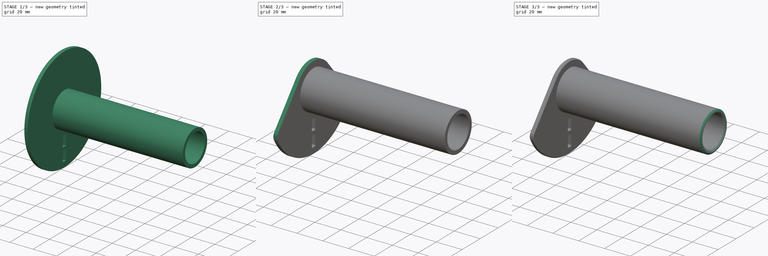
[diagram: build sequence overview — one tinted view per stage of 3, left to right]
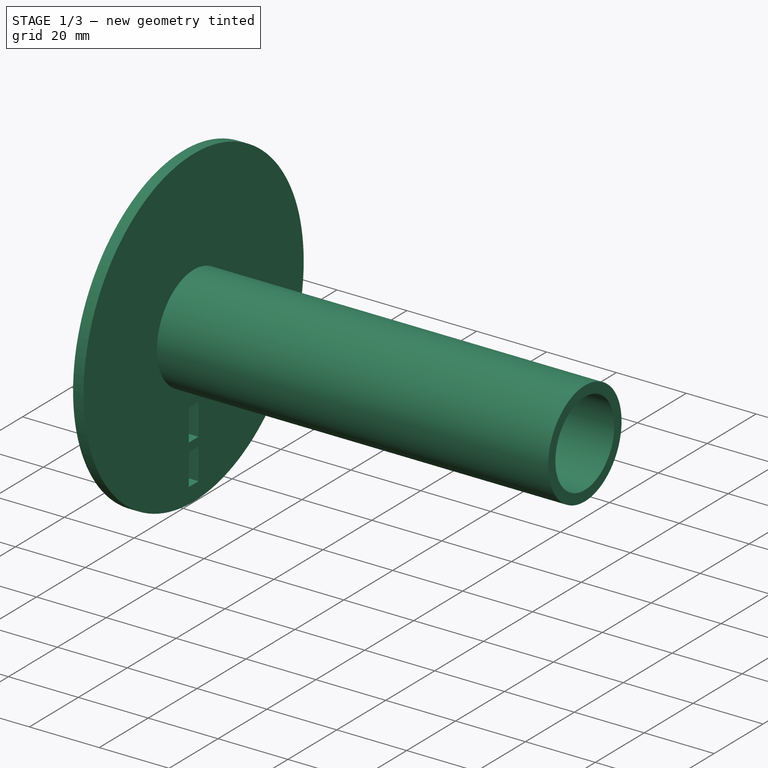
[diagram: stage 1 of 3 — iso view after this stage's code; geometry added in this stage tinted green]
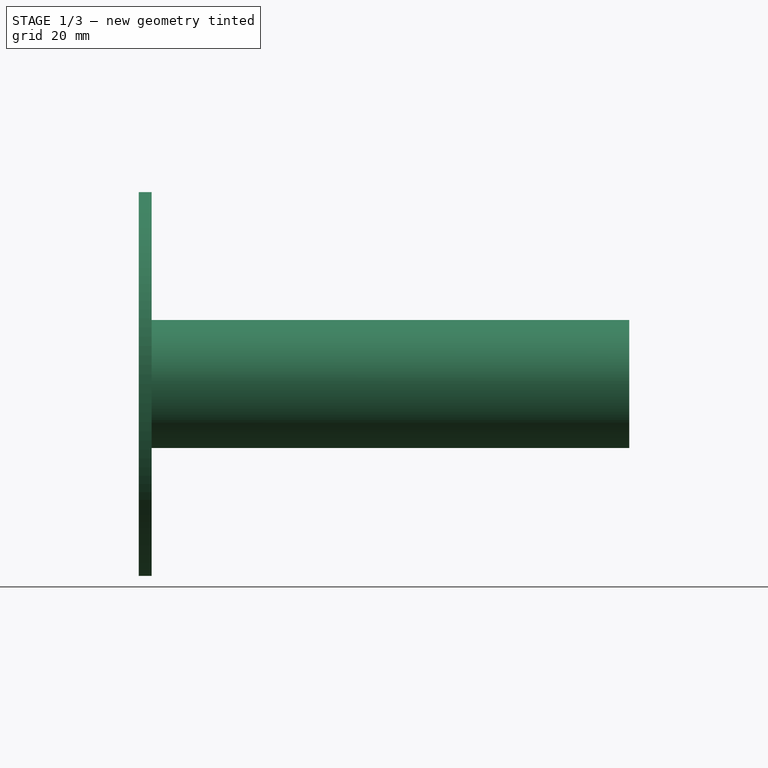
[diagram: stage 1 of 3 — front view after this stage's code; geometry added in this stage tinted green]
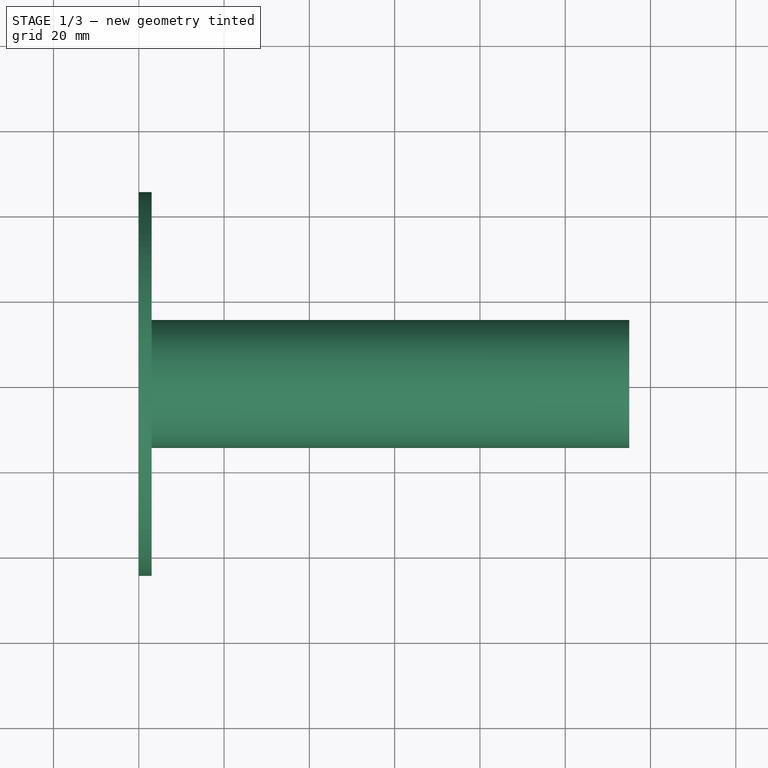
[diagram: stage 1 of 3 — top view after this stage's code; geometry added in this stage tinted green]
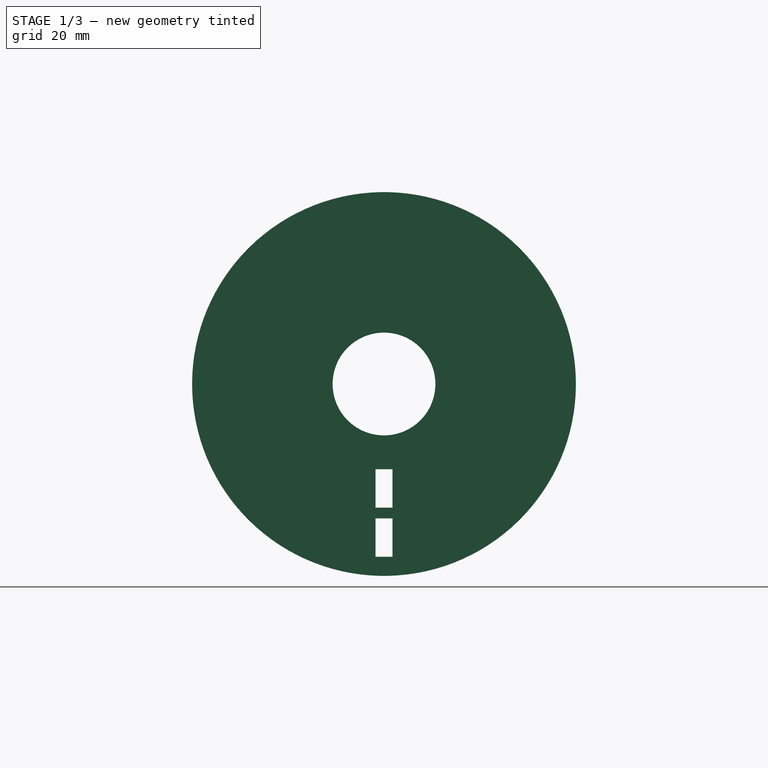
[diagram: stage 1 of 3 — right view after this stage's code; geometry added in this stage tinted green]
FCSTD DOCUMENT  (FreeCAD 0.18R16146 (Git))
Label: vp5005
License: All rights reserved
LicenseURL: http://en.wikipedia.org/wiki/All_rights_reserved
objects: Sketcher::SketchObject×3, PartDesign::Pocket×2, PartDesign::Fillet×2, PartDesign::Chamfer×2, PartDesign::Revolution×1, PartDesign::Body×1
note: 14 computed .brp shape members not serialized (recipe doc carries the construction recipe); baked Part::Feature solids carry a one-line shape summary decoded from their .brp

FEATURE [Sketcher::SketchObject] Sketch
  MapMode = 5
  Support = -> [XY_Plane]
  sketch-geometry (6):
    g0: LineSegment StartX=0 StartY=45 StartZ=0 EndX=3 EndY=45 EndZ=0
    g1: LineSegment StartX=0 StartY=45 StartZ=0 EndX=0 EndY=12.05 EndZ=0
    g2: LineSegment StartX=0 StartY=12.05 StartZ=0 EndX=115 EndY=12.05 EndZ=0
    g3: LineSegment StartX=115 StartY=12.05 StartZ=0 EndX=115 EndY=15 EndZ=0
    g4: LineSegment StartX=115 StartY=15 StartZ=0 EndX=3 EndY=15 EndZ=0
    g5: LineSegment StartX=3 StartY=15 StartZ=0 EndX=3 EndY=45 EndZ=0
  constraints (18):
    c: Horizontal(g0)
    c: Vertical(g1)
    c: Horizontal(g2)
    c: Vertical(g3)
    c: Coincident(g4,g3)
    c: Horizontal(g4)
    c: Coincident(g1,g0)
    c: DistanceY(g-1,g3) = 15
    c: Coincident(g2,g3)
    c: DistanceY(g-1,g2) = 12.05
    c: PointOnObject(g1,g-2)
    c: DistanceX(g0,g0) = 3
    c: DistanceY(g-1,g0) = 45
    c: Vertical(g5)
    c: Coincident(g5,g0)
    c: DistanceX(g1,g2) = 115
    c: Coincident(g2,g1)
    c: Coincident(g4,g5)
FEATURE [PartDesign::Revolution] Revolution
  Angle = 360
  Axis = (1,0,0)
  Base = (0,0,0)
  Profile = -> Sketch
  ReferenceAxis = -> X_Axis
  Reversed = true
FEATURE [Sketcher::SketchObject] Sketch001
  MapMode = 5
  Placement = pos=(2,0,0) rot=(0.57735,0.57735,0.57735;2.0944rad)
  sketch-geometry (8):
    g0: LineSegment StartX=-2 StartY=-31.5 StartZ=0 EndX=2 EndY=-31.5 EndZ=0
    g1: LineSegment StartX=2 StartY=-31.5 StartZ=0 EndX=2 EndY=-40.5 EndZ=0
    g2: LineSegment StartX=2 StartY=-40.5 StartZ=0 EndX=-2 EndY=-40.5 EndZ=0
    g3: LineSegment StartX=-2 StartY=-40.5 StartZ=0 EndX=-2 EndY=-31.5 EndZ=0
    g4: LineSegment StartX=-2 StartY=-20 StartZ=0 EndX=2 EndY=-20 EndZ=0
    g5: LineSegment StartX=2 StartY=-20 StartZ=0 EndX=2 EndY=-29 EndZ=0
    g6: LineSegment StartX=2 StartY=-29 StartZ=0 EndX=-2 EndY=-29 EndZ=0
    g7: LineSegment StartX=-2 StartY=-29 StartZ=0 EndX=-2 EndY=-20 EndZ=0
  constraints (24):
    c: Coincident(g0,g1)
    c: Coincident(g1,g2)
    c: Coincident(g2,g3)
    c: Coincident(g3,g0)
    c: Horizontal(g0)
    c: Horizontal(g2)
    c: Vertical(g1)
    c: Vertical(g3)
    c: Coincident(g4,g5)
    c: Coincident(g5,g6)
    c: Coincident(g6,g7)
    c: Coincident(g7,g4)
    c: Horizontal(g4)
    c: Horizontal(g6)
    c: Vertical(g5)
    c: Vertical(g7)
    c: DistanceX(g-1,g4) = 2
    c: DistanceX(g4,g-1) = 2
    c: DistanceY(g4,g-1) = 20
    c: DistanceY(g5,g4) = 9
    c: DistanceY(g0,g5) = 2.5
    c: Equal(g1,g5)
    c: PointOnObject(g0,g7)
    c: PointOnObject(g0,g5)
FEATURE [PartDesign::Pocket] Pocket
  BaseFeature = -> Revolution
  Length = 6
  Length2 = 100
  Midplane = true
  Profile = -> Sketch001
  Type = 0
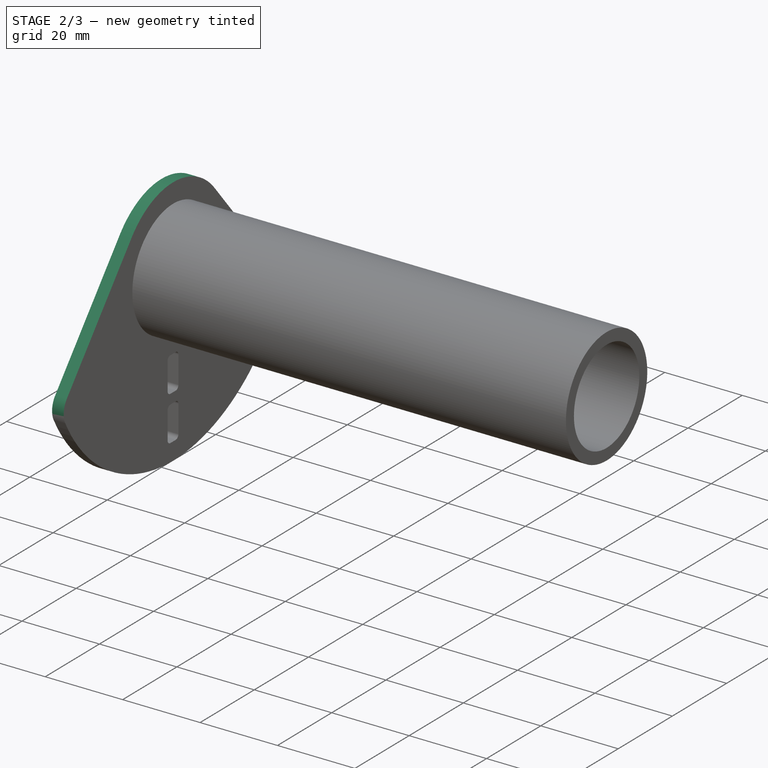
[diagram: stage 2 of 3 — iso view after this stage's code; geometry added in this stage tinted green]
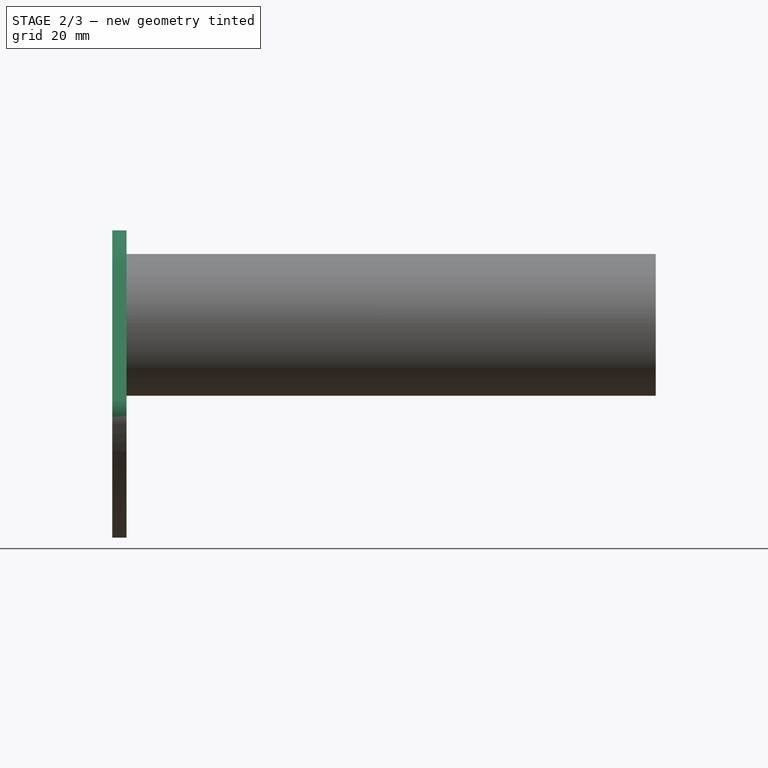
[diagram: stage 2 of 3 — front view after this stage's code; geometry added in this stage tinted green]
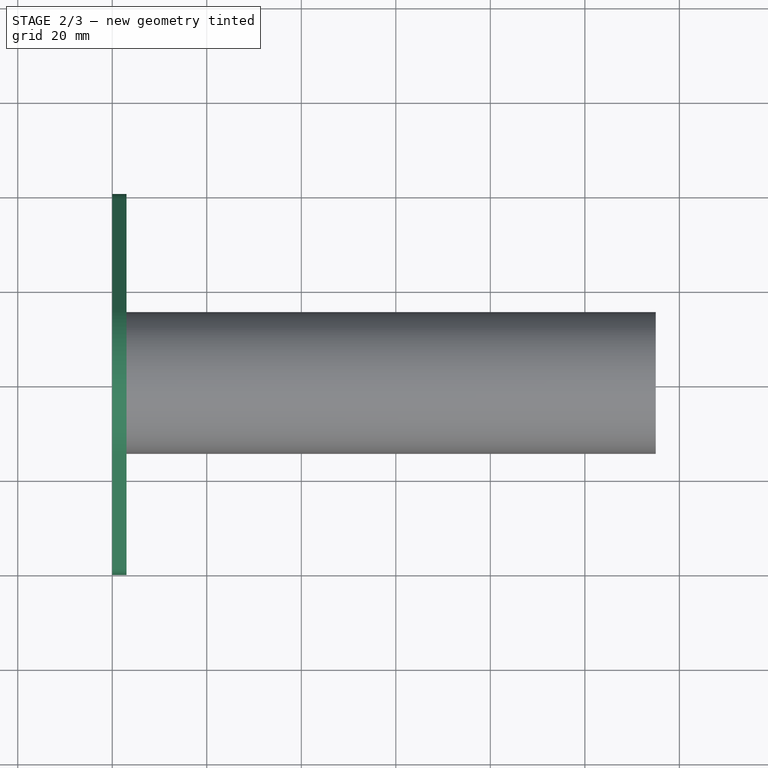
[diagram: stage 2 of 3 — top view after this stage's code; geometry added in this stage tinted green]
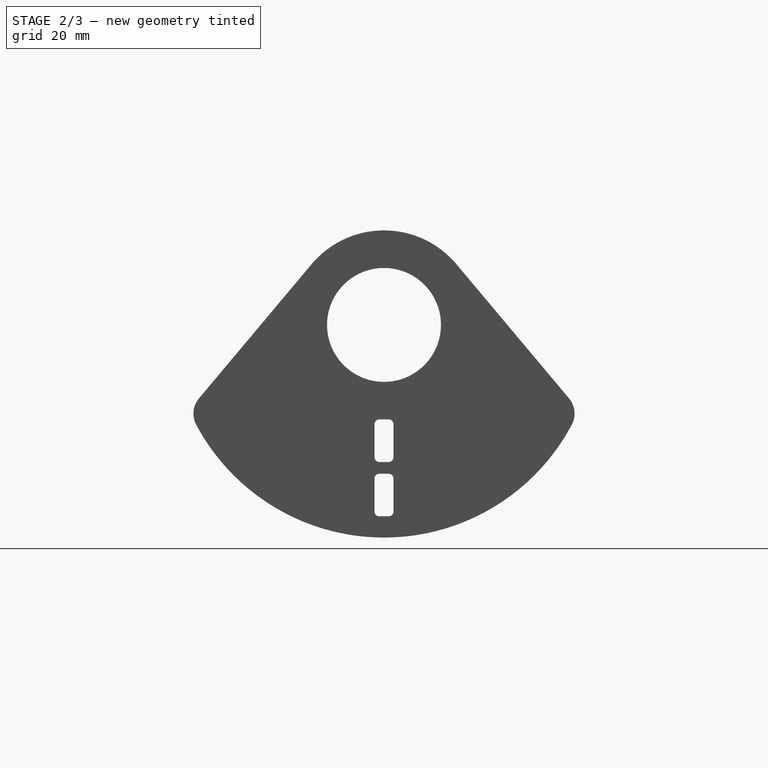
[diagram: stage 2 of 3 — right view after this stage's code; geometry added in this stage tinted green]
FEATURE [Sketcher::SketchObject] Sketch002
  MapMode = 5
  Placement = pos=(0,0,0) rot=(0.57735,-0.57735,-0.57735;2.0944rad)
  sketch-geometry (4):
    g0: ArcOfCircle CenterX=0 CenterY=0 CenterZ=0 NormalX=0 NormalY=0 NormalZ=1 AngleXU=0 Radius=50 StartAngle=5.82204 EndAngle=9.88593
    g1: ArcOfCircle CenterX=0 CenterY=0 CenterZ=0 NormalX=0 NormalY=0 NormalZ=1 AngleXU=0 Radius=20 StartAngle=0.698132 EndAngle=2.44346
    g2: LineSegment StartX=-44.7771 StartY=-22.2488 StartZ=0 EndX=-15.3209 EndY=12.8558 EndZ=0
    g3: LineSegment StartX=15.3209 StartY=12.8558 StartZ=0 EndX=44.7771 EndY=-22.2488 EndZ=0
  constraints (10):
    c: Coincident(g0,g-1)
    c: Coincident(g1,g0)
    c: Radius(g0) = 50
    c: Radius(g1) = 20
    c: Coincident(g2,g0)
    c: Coincident(g0,g3)
    c: Tangent(g2,g1) = 1.5708
    c: Tangent(g3,g1) = 1.5708
    c: Angle(g-2,g3) = 0.698132
    c: Angle(g2,g-2) = 0.698132
FEATURE [PartDesign::Pocket] Pocket001
  BaseFeature = -> Pocket
  Length = 5
  Length2 = 100
  Profile = -> Sketch002
  Type = 0
FEATURE [PartDesign::Fillet] Fillet
  Base = -> Pocket001 [Edge1,Edge3]
  BaseFeature = -> Pocket001
  Radius = 5
FEATURE [PartDesign::Fillet] Fillet001
  Base = -> Fillet [Edge46,Edge43,Edge44,Edge45,Edge42,Edge39,Edge40,Edge41]
  BaseFeature = -> Fillet
  Radius = 1
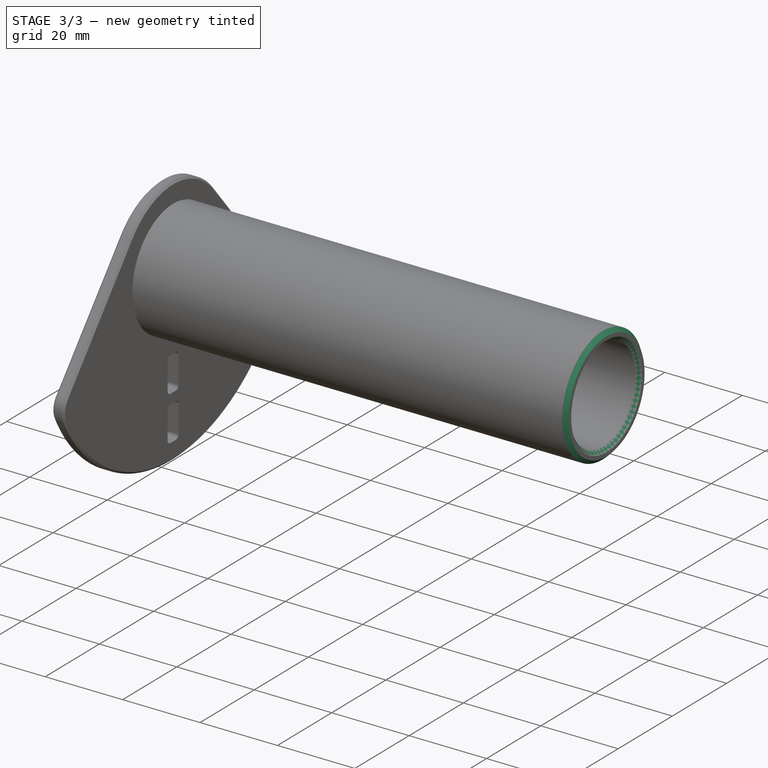
[diagram: stage 3 of 3 — iso view after this stage's code; geometry added in this stage tinted green]
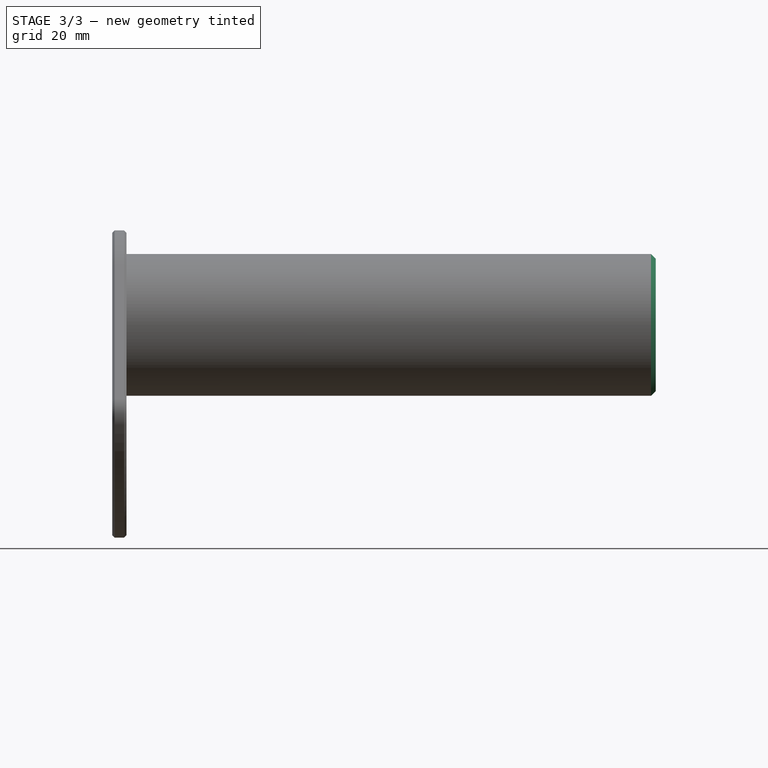
[diagram: stage 3 of 3 — front view after this stage's code; geometry added in this stage tinted green]
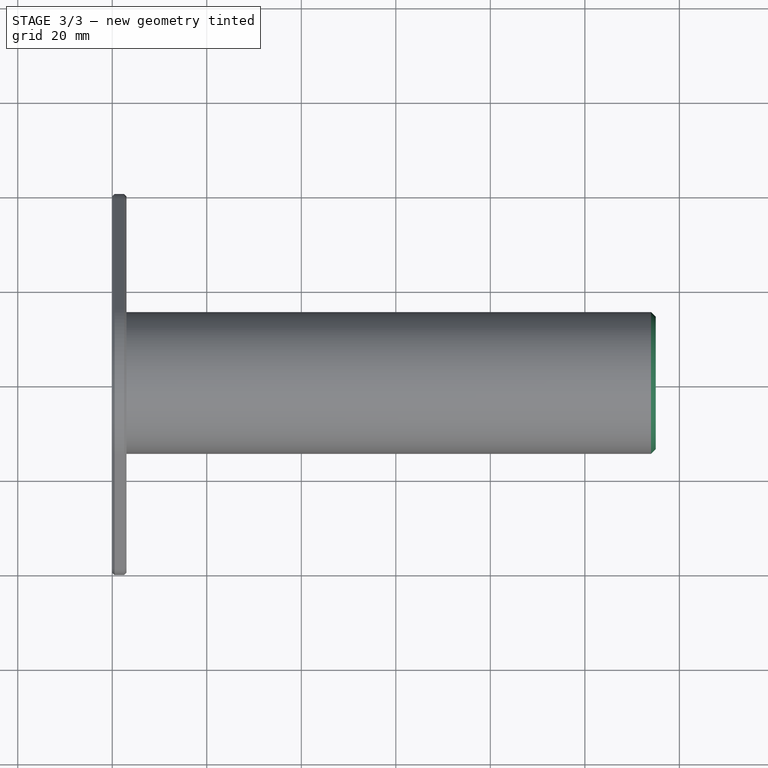
[diagram: stage 3 of 3 — top view after this stage's code; geometry added in this stage tinted green]
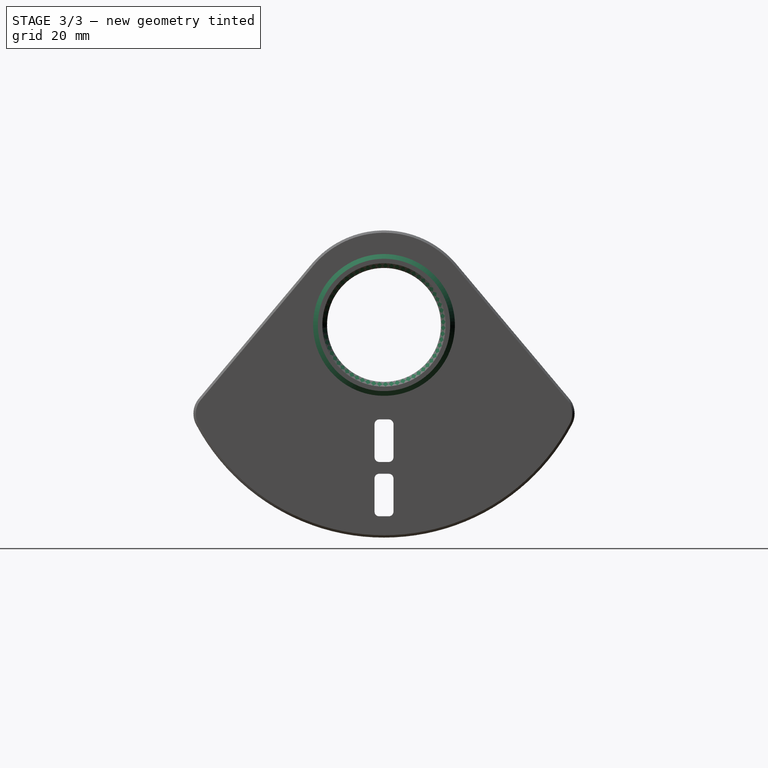
[diagram: stage 3 of 3 — right view after this stage's code; geometry added in this stage tinted green]
FEATURE [PartDesign::Chamfer] Chamfer
  Base = -> Fillet001 [Edge42,Edge9,Edge70]
  BaseFeature = -> Fillet001
  Size = 0.5
FEATURE [PartDesign::Chamfer] Chamfer001
  Base = -> Chamfer [Edge52,Edge89]
  BaseFeature = -> Chamfer
  Size = 1
FEATURE [PartDesign::Body] Body
  Group = -> [Sketch,Revolution,Sketch001,Pocket,Sketch002,Pocket001,Fillet,Fillet001,Chamfer,Chamfer001]
  Origin = -> Origin
  Tip = -> Chamfer001
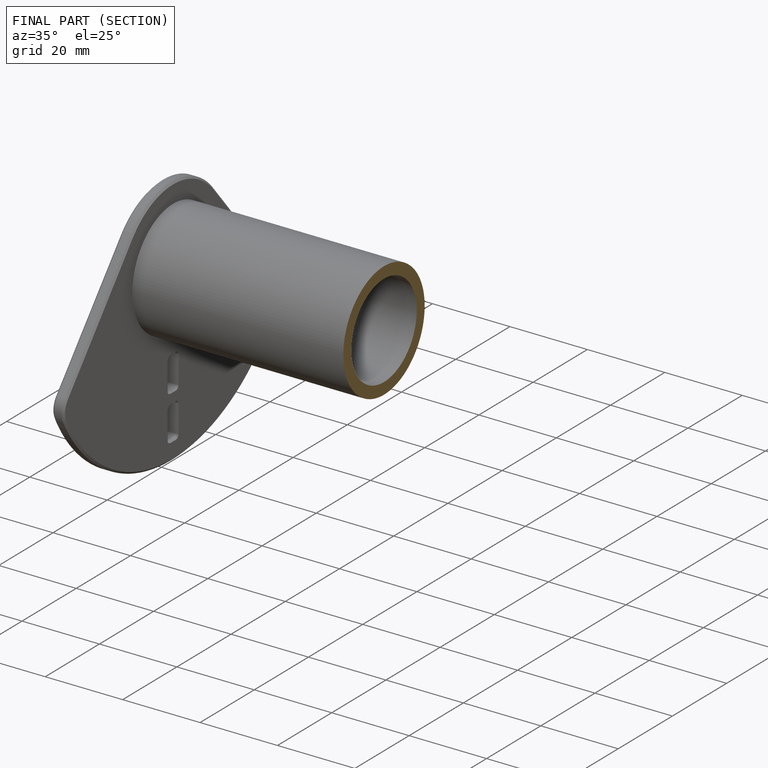
[diagram: finished part — half-section view (interior)]
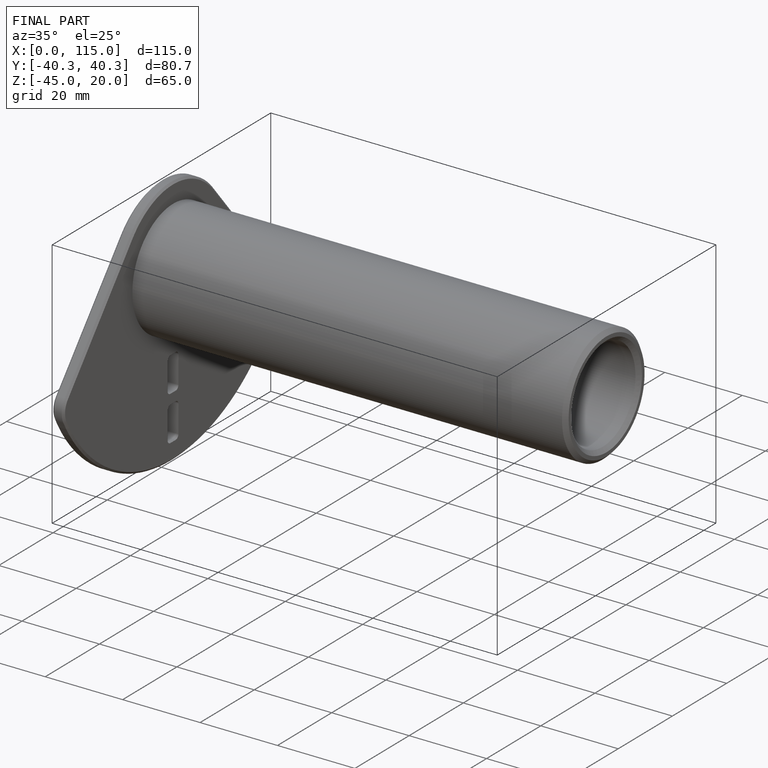
[diagram: finished part — iso view with bounding-box wireframe]
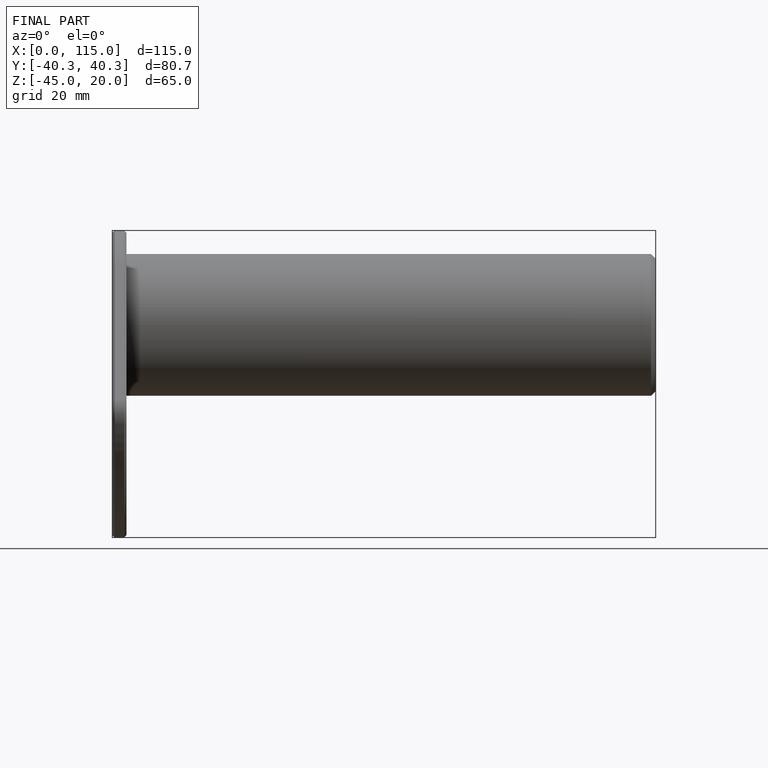
[diagram: finished part — front view with bounding-box wireframe]
